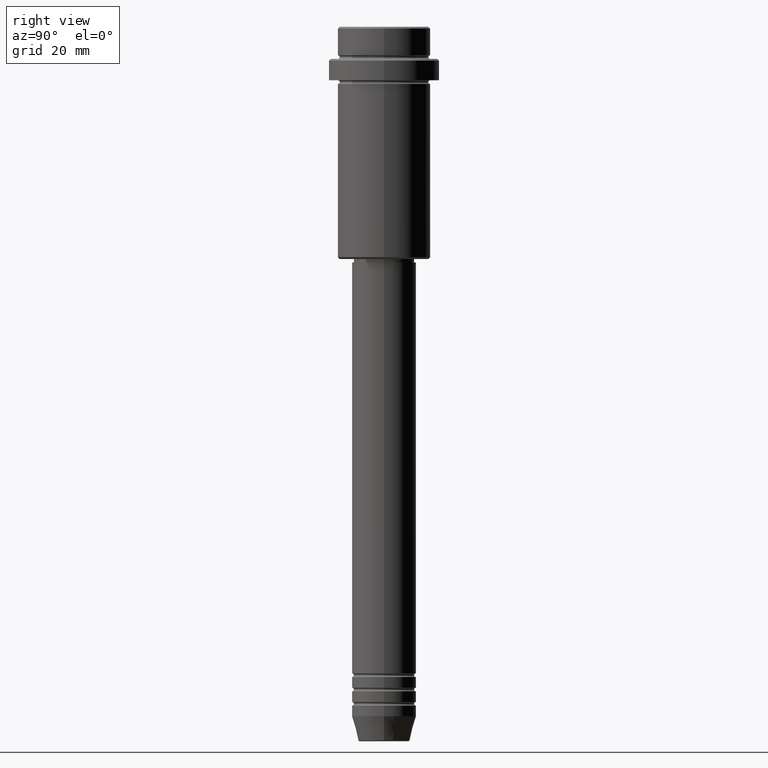
[diagram: clean part render]
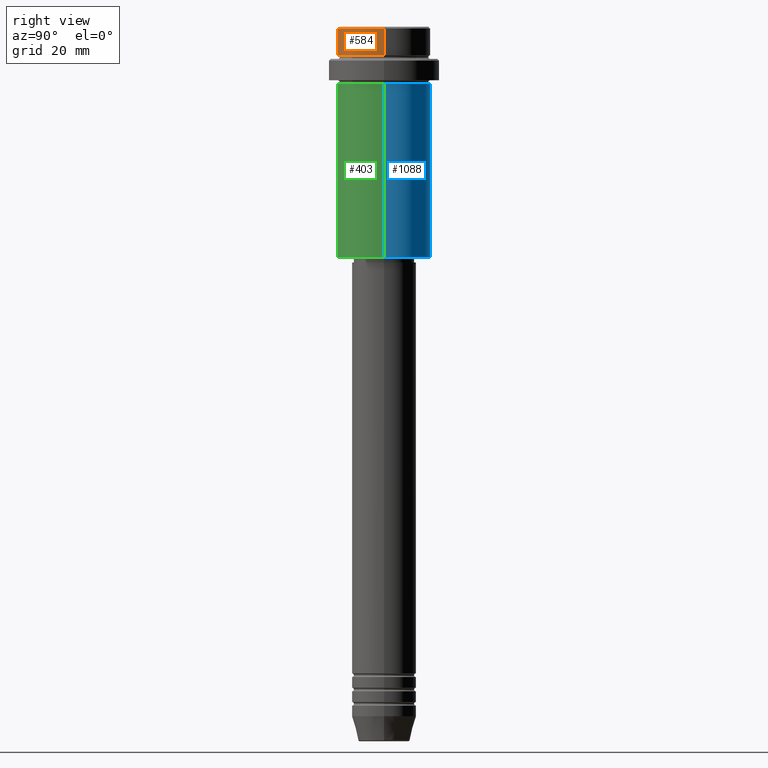
[diagram: same view with three faces highlighted in distinct colors, each labeled with its STEP entity id]
A machine part, right view with three faces highlighted in distinct colors.
Their STEP definitions:

[orange] entity #584 — the highlighted cylindrical surface (partial cylindrical patch) has radius 13 mm, axis along (-0, -0, 1).
#27 = ORIENTED_EDGE ( 'NONE', *, *, #474, .T. ) ;
#68 = EDGE_LOOP ( 'NONE', ( #926, #613, #1137, #27 ) ) ;
#215 = DIRECTION ( 'NONE',  ( 1.000000000000000000, 0.000000000000000000, 0.000000000000000000 ) ) ;
#235 = DIRECTION ( 'NONE',  ( -0.000000000000000000, -0.000000000000000000, 1.000000000000000000 ) ) ;
#283 = CARTESIAN_POINT ( 'NONE',  ( 0.000000000000000000, 0.000000000000000000, -0.5000000000000037748 ) ) ;
#290 = DIRECTION ( 'NONE',  ( 0.000000000000000000, 0.000000000000000000, -1.000000000000000000 ) ) ;
#318 = CYLINDRICAL_SURFACE ( 'NONE', #1104, 12.99999999999999822 ) ;
#352 = DIRECTION ( 'NONE',  ( -0.000000000000000000, -0.000000000000000000, 1.000000000000000000 ) ) ;
#375 = CARTESIAN_POINT ( 'NONE',  ( -12.99999999999999822, 1.592040838891558898E-15, -7.999999999999998224 ) ) ;
#390 = VERTEX_POINT ( 'NONE', #606 ) ;
#471 = CARTESIAN_POINT ( 'NONE',  ( 0.000000000000000000, 0.000000000000000000, -7.999999999999998224 ) ) ;
#474 = EDGE_CURVE ( 'NONE', #390, #539, #575, .T. ) ;
#539 = VERTEX_POINT ( 'NONE', #1181 ) ;
#574 = VERTEX_POINT ( 'NONE', #844 ) ;
#575 = CIRCLE ( 'NONE', #894, 12.99999999999999822 ) ;
#584 = ADVANCED_FACE ( 'NONE', ( #1051 ), #318, .T. ) ;
#606 = CARTESIAN_POINT ( 'NONE',  ( 12.99999999999999822, 0.000000000000000000, -0.5000000000000037748 ) ) ;
#613 = ORIENTED_EDGE ( 'NONE', *, *, #674, .T. ) ;
#621 = VECTOR ( 'NONE', #705, 1000.000000000000000 ) ;
#642 = CIRCLE ( 'NONE', #917, 12.99999999999999822 ) ;
#674 = EDGE_CURVE ( 'NONE', #852, #574, #642, .T. ) ;
#705 = DIRECTION ( 'NONE',  ( -0.000000000000000000, -0.000000000000000000, 1.000000000000000000 ) ) ;
#727 = DIRECTION ( 'NONE',  ( 1.000000000000000000, 0.000000000000000000, 0.000000000000000000 ) ) ;
#741 = DIRECTION ( 'NONE',  ( -0.000000000000000000, -0.000000000000000000, 1.000000000000000000 ) ) ;
#774 = LINE ( 'NONE', #781, #982 ) ;
#781 = CARTESIAN_POINT ( 'NONE',  ( -12.99999999999999822, 1.592040838891558898E-15, 0.000000000000000000 ) ) ;
#805 = EDGE_CURVE ( 'NONE', #852, #539, #774, .T. ) ;
#844 = CARTESIAN_POINT ( 'NONE',  ( 12.99999999999999822, 0.000000000000000000, -7.999999999999998224 ) ) ;
#852 = VERTEX_POINT ( 'NONE', #375 ) ;
#894 = AXIS2_PLACEMENT_3D ( 'NONE', #283, #290, #727 ) ;
#909 = EDGE_CURVE ( 'NONE', #574, #390, #1116, .T. ) ;
#917 = AXIS2_PLACEMENT_3D ( 'NONE', #471, #352, #215 ) ;
#926 = ORIENTED_EDGE ( 'NONE', *, *, #805, .F. ) ;
#982 = VECTOR ( 'NONE', #235, 1000.000000000000000 ) ;
#1051 = FACE_OUTER_BOUND ( 'NONE', #68, .T. ) ;
#1104 = AXIS2_PLACEMENT_3D ( 'NONE', #1264, #741, #1158 ) ;
#1116 = LINE ( 'NONE', #1247, #621 ) ;
#1137 = ORIENTED_EDGE ( 'NONE', *, *, #909, .T. ) ;
#1158 = DIRECTION ( 'NONE',  ( 1.000000000000000000, 0.000000000000000000, 0.000000000000000000 ) ) ;
#1181 = CARTESIAN_POINT ( 'NONE',  ( -12.99999999999999822, 1.592040838891558898E-15, -0.5000000000000037748 ) ) ;
#1247 = CARTESIAN_POINT ( 'NONE',  ( 12.99999999999999822, 0.000000000000000000, 0.000000000000000000 ) ) ;
#1264 = CARTESIAN_POINT ( 'NONE',  ( 0.000000000000000000, 0.000000000000000000, 0.000000000000000000 ) ) ;

[blue] entity #1088 — the highlighted cylindrical surface (partial cylindrical patch) has radius 13 mm, axis along (-0, -0, 1).
#3 = VERTEX_POINT ( 'NONE', #521 ) ;
#20 = EDGE_CURVE ( 'NONE', #453, #3, #1019, .T. ) ;
#26 = DIRECTION ( 'NONE',  ( -0.000000000000000000, -0.000000000000000000, 1.000000000000000000 ) ) ;
#31 = DIRECTION ( 'NONE',  ( -0.000000000000000000, -0.000000000000000000, 1.000000000000000000 ) ) ;
#151 = DIRECTION ( 'NONE',  ( 1.000000000000000000, 0.000000000000000000, 0.000000000000000000 ) ) ;
#161 = CARTESIAN_POINT ( 'NONE',  ( 0.000000000000000000, 0.000000000000000000, -64.50000000000002842 ) ) ;
#165 = CARTESIAN_POINT ( 'NONE',  ( 13.00000000000000000, 0.000000000000000000, 0.000000000000000000 ) ) ;
#179 = EDGE_CURVE ( 'NONE', #607, #1213, #1129, .T. ) ;
#253 = DIRECTION ( 'NONE',  ( -1.000000000000000000, 0.000000000000000000, 0.000000000000000000 ) ) ;
#298 = AXIS2_PLACEMENT_3D ( 'NONE', #161, #618, #253 ) ;
#300 = DIRECTION ( 'NONE',  ( -0.000000000000000000, -0.000000000000000000, 1.000000000000000000 ) ) ;
#366 = EDGE_CURVE ( 'NONE', #453, #607, #1015, .T. ) ;
#391 = EDGE_CURVE ( 'NONE', #3, #1213, #1344, .T. ) ;
#427 = CARTESIAN_POINT ( 'NONE',  ( 13.00000000000000000, 0.000000000000000000, -16.00000000000000000 ) ) ;
#429 = CARTESIAN_POINT ( 'NONE',  ( 0.000000000000000000, 0.000000000000000000, -16.00000000000000000 ) ) ;
#453 = VERTEX_POINT ( 'NONE', #938 ) ;
#499 = CARTESIAN_POINT ( 'NONE',  ( -13.00000000000000000, 1.592040838891559095E-15, 0.000000000000000000 ) ) ;
#521 = CARTESIAN_POINT ( 'NONE',  ( -13.00000000000000000, 1.592040838891559095E-15, -64.50000000000002842 ) ) ;
#572 = ORIENTED_EDGE ( 'NONE', *, *, #20, .T. ) ;
#598 = DIRECTION ( 'NONE',  ( 1.000000000000000000, 0.000000000000000000, 0.000000000000000000 ) ) ;
#607 = VERTEX_POINT ( 'NONE', #427 ) ;
#618 = DIRECTION ( 'NONE',  ( -0.000000000000000000, -0.000000000000000000, 1.000000000000000000 ) ) ;
#641 = CYLINDRICAL_SURFACE ( 'NONE', #1196, 13.00000000000000000 ) ;
#680 = ORIENTED_EDGE ( 'NONE', *, *, #179, .F. ) ;
#784 = AXIS2_PLACEMENT_3D ( 'NONE', #429, #300, #151 ) ;
#938 = CARTESIAN_POINT ( 'NONE',  ( 13.00000000000000000, 0.000000000000000000, -64.50000000000002842 ) ) ;
#971 = CARTESIAN_POINT ( 'NONE',  ( 0.000000000000000000, 0.000000000000000000, 0.000000000000000000 ) ) ;
#983 = CARTESIAN_POINT ( 'NONE',  ( -13.00000000000000000, 1.592040838891559095E-15, -16.00000000000000000 ) ) ;
#1015 = LINE ( 'NONE', #165, #1144 ) ;
#1019 = CIRCLE ( 'NONE', #298, 13.00000000000000000 ) ;
#1088 = ADVANCED_FACE ( 'NONE', ( #1161 ), #641, .T. ) ;
#1094 = EDGE_LOOP ( 'NONE', ( #572, #1413, #680, #1208 ) ) ;
#1123 = VECTOR ( 'NONE', #1134, 1000.000000000000000 ) ;
#1129 = CIRCLE ( 'NONE', #784, 13.00000000000000000 ) ;
#1134 = DIRECTION ( 'NONE',  ( -0.000000000000000000, -0.000000000000000000, 1.000000000000000000 ) ) ;
#1144 = VECTOR ( 'NONE', #31, 1000.000000000000000 ) ;
#1161 = FACE_OUTER_BOUND ( 'NONE', #1094, .T. ) ;
#1196 = AXIS2_PLACEMENT_3D ( 'NONE', #971, #26, #598 ) ;
#1208 = ORIENTED_EDGE ( 'NONE', *, *, #366, .F. ) ;
#1213 = VERTEX_POINT ( 'NONE', #983 ) ;
#1344 = LINE ( 'NONE', #499, #1123 ) ;
#1413 = ORIENTED_EDGE ( 'NONE', *, *, #391, .T. ) ;

[green] entity #403 — the highlighted cylindrical surface (partial cylindrical patch) has radius 13 mm, axis along (-0, -0, 1).
#3 = VERTEX_POINT ( 'NONE', #521 ) ;
#31 = DIRECTION ( 'NONE',  ( -0.000000000000000000, -0.000000000000000000, 1.000000000000000000 ) ) ;
#165 = CARTESIAN_POINT ( 'NONE',  ( 13.00000000000000000, 0.000000000000000000, 0.000000000000000000 ) ) ;
#255 = AXIS2_PLACEMENT_3D ( 'NONE', #1411, #798, #331 ) ;
#268 = FACE_OUTER_BOUND ( 'NONE', #747, .T. ) ;
#294 = AXIS2_PLACEMENT_3D ( 'NONE', #1255, #1369, #923 ) ;
#304 = DIRECTION ( 'NONE',  ( 1.000000000000000000, 0.000000000000000000, 0.000000000000000000 ) ) ;
#331 = DIRECTION ( 'NONE',  ( -1.000000000000000000, 0.000000000000000000, 0.000000000000000000 ) ) ;
#366 = EDGE_CURVE ( 'NONE', #453, #607, #1015, .T. ) ;
#391 = EDGE_CURVE ( 'NONE', #3, #1213, #1344, .T. ) ;
#403 = ADVANCED_FACE ( 'NONE', ( #268 ), #1145, .T. ) ;
#409 = CARTESIAN_POINT ( 'NONE',  ( 0.000000000000000000, 0.000000000000000000, -16.00000000000000000 ) ) ;
#427 = CARTESIAN_POINT ( 'NONE',  ( 13.00000000000000000, 0.000000000000000000, -16.00000000000000000 ) ) ;
#453 = VERTEX_POINT ( 'NONE', #938 ) ;
#499 = CARTESIAN_POINT ( 'NONE',  ( -13.00000000000000000, 1.592040838891559095E-15, 0.000000000000000000 ) ) ;
#521 = CARTESIAN_POINT ( 'NONE',  ( -13.00000000000000000, 1.592040838891559095E-15, -64.50000000000002842 ) ) ;
#536 = DIRECTION ( 'NONE',  ( -0.000000000000000000, -0.000000000000000000, 1.000000000000000000 ) ) ;
#550 = EDGE_CURVE ( 'NONE', #1213, #607, #1085, .T. ) ;
#607 = VERTEX_POINT ( 'NONE', #427 ) ;
#728 = ORIENTED_EDGE ( 'NONE', *, *, #391, .F. ) ;
#747 = EDGE_LOOP ( 'NONE', ( #728, #1246, #1315, #943 ) ) ;
#798 = DIRECTION ( 'NONE',  ( -0.000000000000000000, -0.000000000000000000, 1.000000000000000000 ) ) ;
#800 = AXIS2_PLACEMENT_3D ( 'NONE', #409, #536, #304 ) ;
#923 = DIRECTION ( 'NONE',  ( 1.000000000000000000, 0.000000000000000000, 0.000000000000000000 ) ) ;
#938 = CARTESIAN_POINT ( 'NONE',  ( 13.00000000000000000, 0.000000000000000000, -64.50000000000002842 ) ) ;
#943 = ORIENTED_EDGE ( 'NONE', *, *, #550, .F. ) ;
#983 = CARTESIAN_POINT ( 'NONE',  ( -13.00000000000000000, 1.592040838891559095E-15, -16.00000000000000000 ) ) ;
#1015 = LINE ( 'NONE', #165, #1144 ) ;
#1085 = CIRCLE ( 'NONE', #800, 13.00000000000000000 ) ;
#1087 = CIRCLE ( 'NONE', #255, 13.00000000000000000 ) ;
#1123 = VECTOR ( 'NONE', #1134, 1000.000000000000000 ) ;
#1134 = DIRECTION ( 'NONE',  ( -0.000000000000000000, -0.000000000000000000, 1.000000000000000000 ) ) ;
#1144 = VECTOR ( 'NONE', #31, 1000.000000000000000 ) ;
#1145 = CYLINDRICAL_SURFACE ( 'NONE', #294, 13.00000000000000000 ) ;
#1213 = VERTEX_POINT ( 'NONE', #983 ) ;
#1219 = EDGE_CURVE ( 'NONE', #3, #453, #1087, .T. ) ;
#1246 = ORIENTED_EDGE ( 'NONE', *, *, #1219, .T. ) ;
#1255 = CARTESIAN_POINT ( 'NONE',  ( 0.000000000000000000, 0.000000000000000000, 0.000000000000000000 ) ) ;
#1315 = ORIENTED_EDGE ( 'NONE', *, *, #366, .T. ) ;
#1344 = LINE ( 'NONE', #499, #1123 ) ;
#1369 = DIRECTION ( 'NONE',  ( -0.000000000000000000, -0.000000000000000000, 1.000000000000000000 ) ) ;
#1411 = CARTESIAN_POINT ( 'NONE',  ( 0.000000000000000000, 0.000000000000000000, -64.50000000000002842 ) ) ;